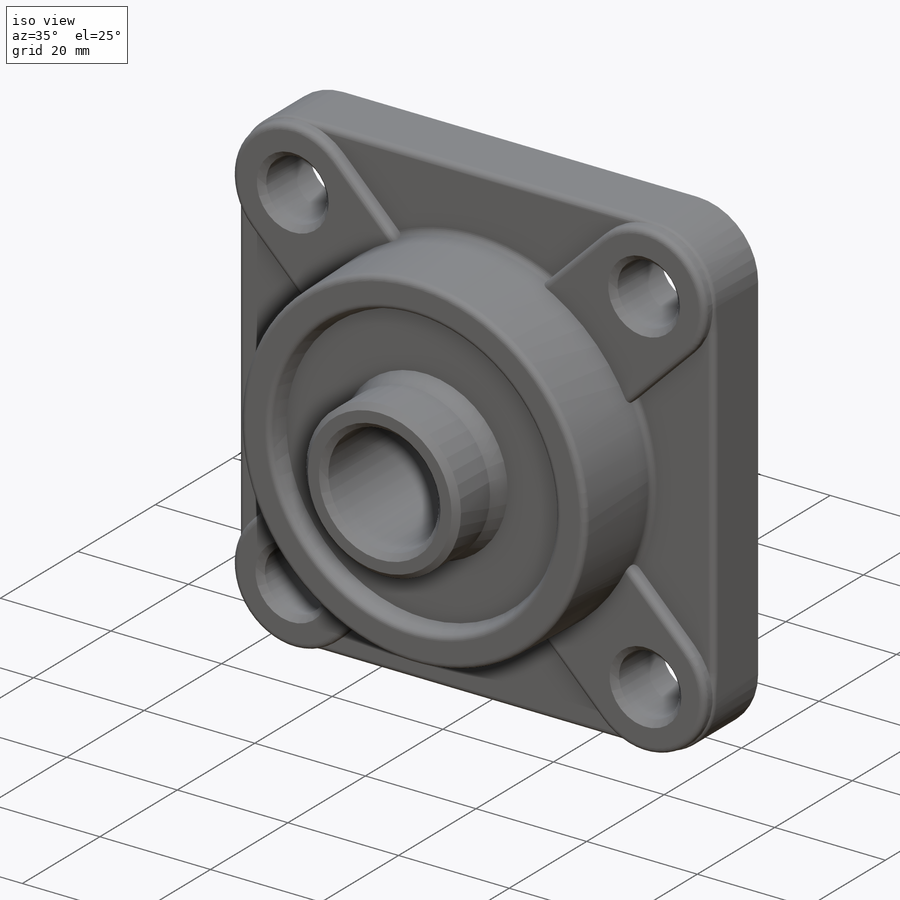
[diagram: iso view]
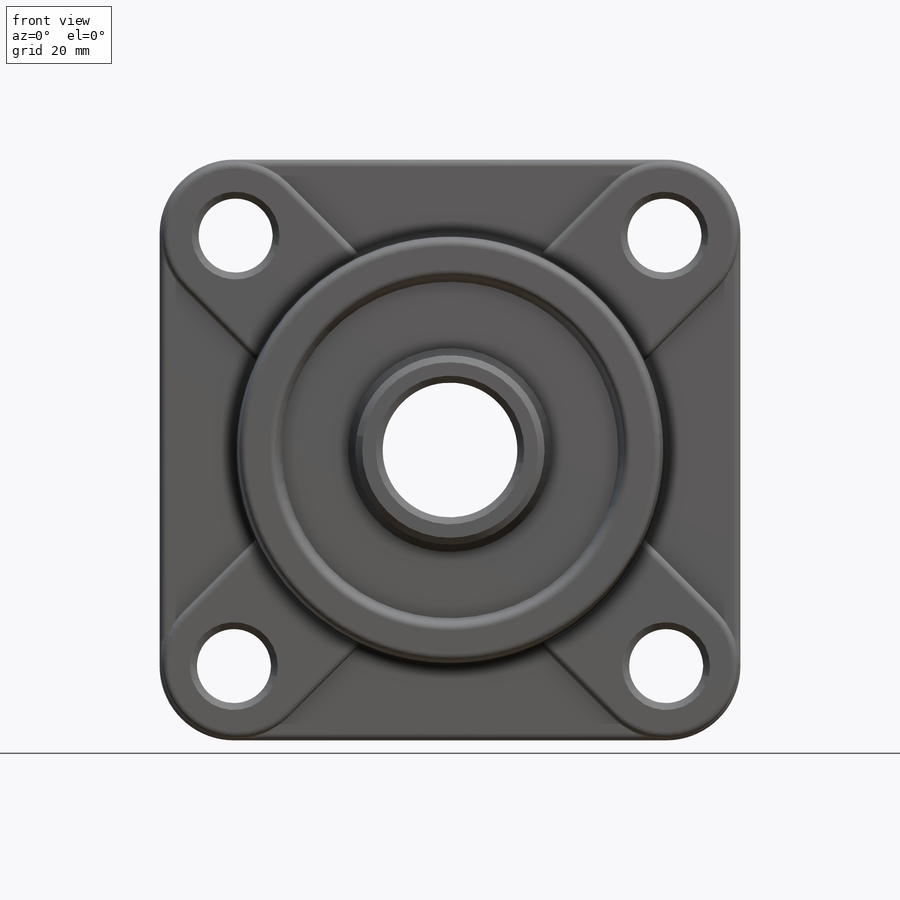
[diagram: front view]
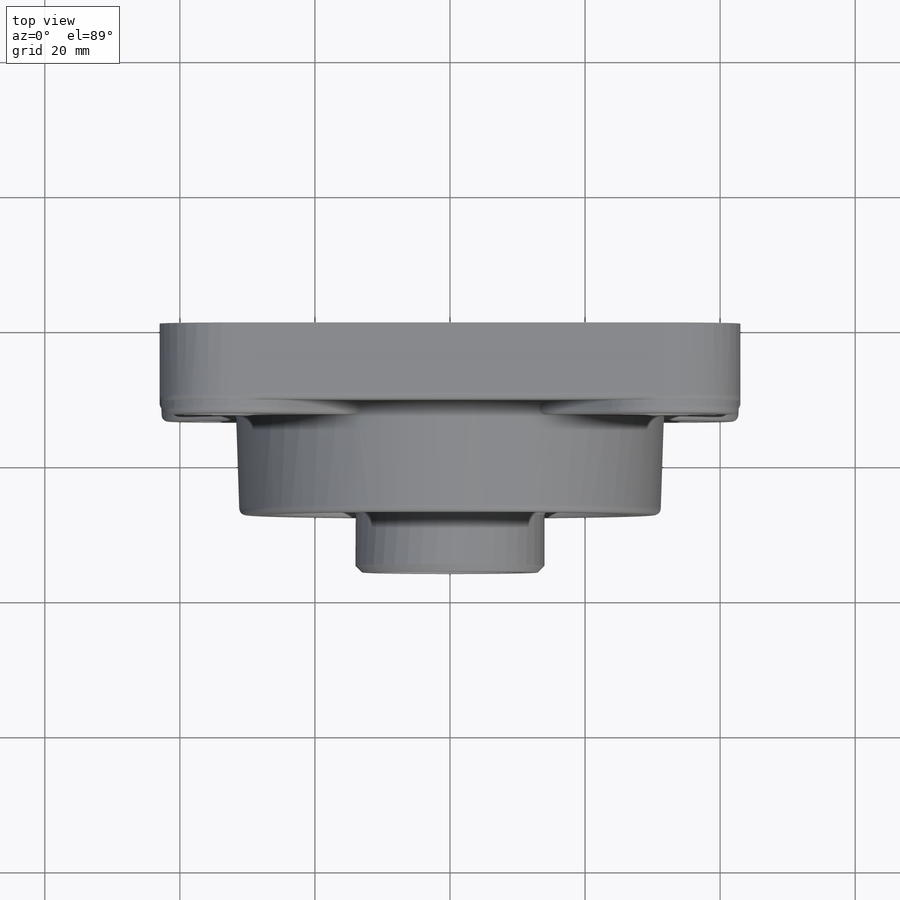
[diagram: top view]
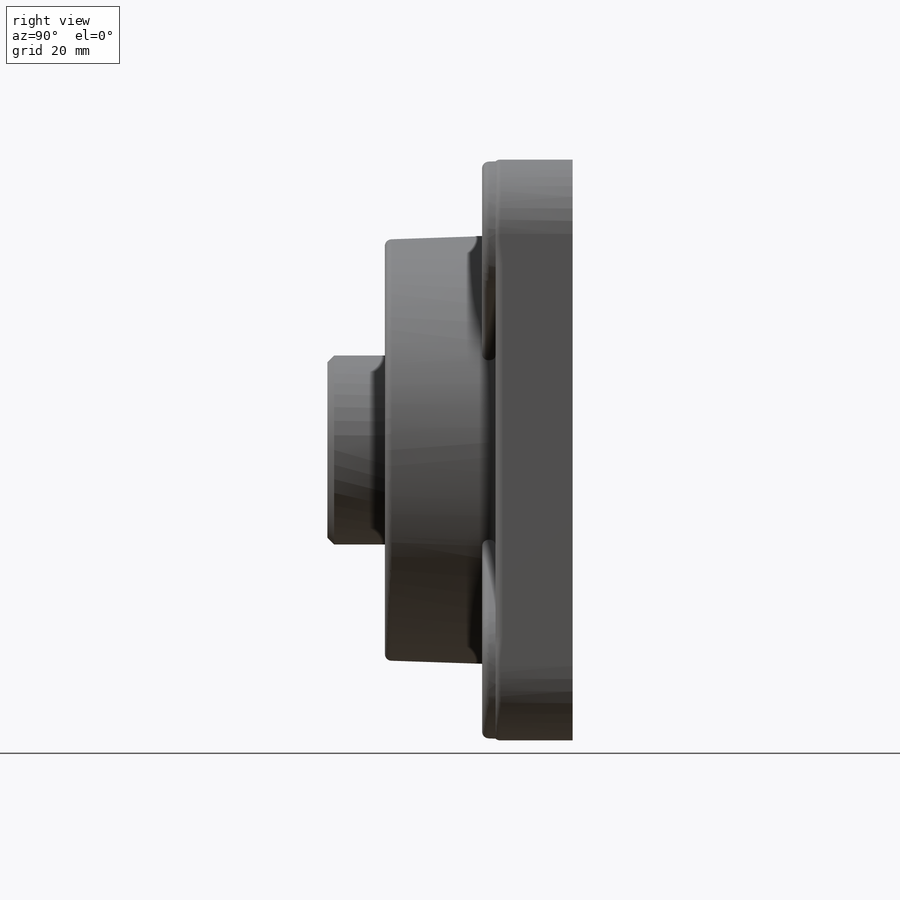
[diagram: right view]
SOLIDWORKS PART (.sldprt)
format: sldprt  version: not decoded by parser v0  size: 1,106,944 bytes
history: native  units: mm
features: sketch x10, cut_extrude x5, extrude x4, material x1, fillet x1, chamfer x1 (+11 scaffold rows collapsed)
feature tree (33):
  scaffold x11  (default folders/planes/origin — collapsed)
  material  "PE High Density"
  sketch  "Sketch1"  dims[D5=11.0mm D1=86.0mm D2=86.0mm D3=43.0mm D4=43.0mm]
  extrude  "Extrude1"  Depth=11.4mm
  sketch  "Sketch2"  dims[D1=63.5mm]
  extrude  "Extrude2"  Depth=16.4mm
  sketch  "Sketch3"  dims[D1=22.0mm D2=22.0mm D3=22.0mm D4=22.0mm D5=63.5mm D6=63.5mm D7=11.25mm D8=11.25mm D9=~64.297093mm]
  extrude  "Extrude3"  Depth=2mm
  sketch  "Sketch4"  dims[D1=11.0mm]
  cut_extrude  "Cut-Extrude1"  [1 undecoded]
  sketch  "Sketch5"  dims[D1=28.0mm]
  extrude  "Extrude4"  Depth=8.5mm
  sketch  "Sketch6"  dims[D1=20.0mm]
  cut_extrude  "Cut-Extrude2"  [1 undecoded]
  sketch  "Sketch7"  dims[D1=52.0mm D2=28.0mm]
  cut_extrude  "Cut-Extrude3"  Depth=3mm
  sketch  "Sketch8"  dims[c1.D5=22.0mm c1.D1=56.0mm c1.D2=56.0mm c1.D3=28.0mm c1.D4=28.0mm c2.D2=56.0mm]
  cut_extrude  "Cut-Extrude4"  Depth=8mm
  sketch  "Sketch9"  dims[c1.D1=20.0mm c2.D1=2.7mm c2.D5=4.0mm c2.D6=10.0mm c2.D7=5.0mm]
  fillet  "Fillet1"  Radius=1mm
  chamfer  "Chamfer1"  Distance=1mm Angle=45deg
  sketch  "Sketch10"  dims[D1=50.0mm]
  cut_extrude  "Cut-Extrude5"  Depth=2.7mm
decode coverage: 19 of 21 modeling features carry decoded parameters
note: ~ marks probable driven/reference dimensions
note: 2 parameter values undecoded
note: suppression state not decoded; provenance and decode notes live in map.json
